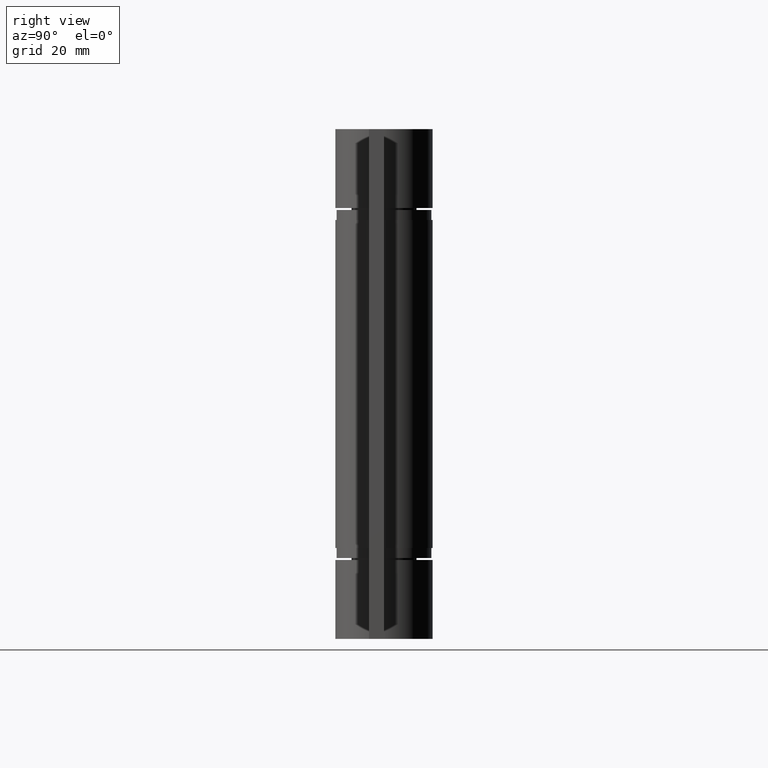
[diagram: clean part render]
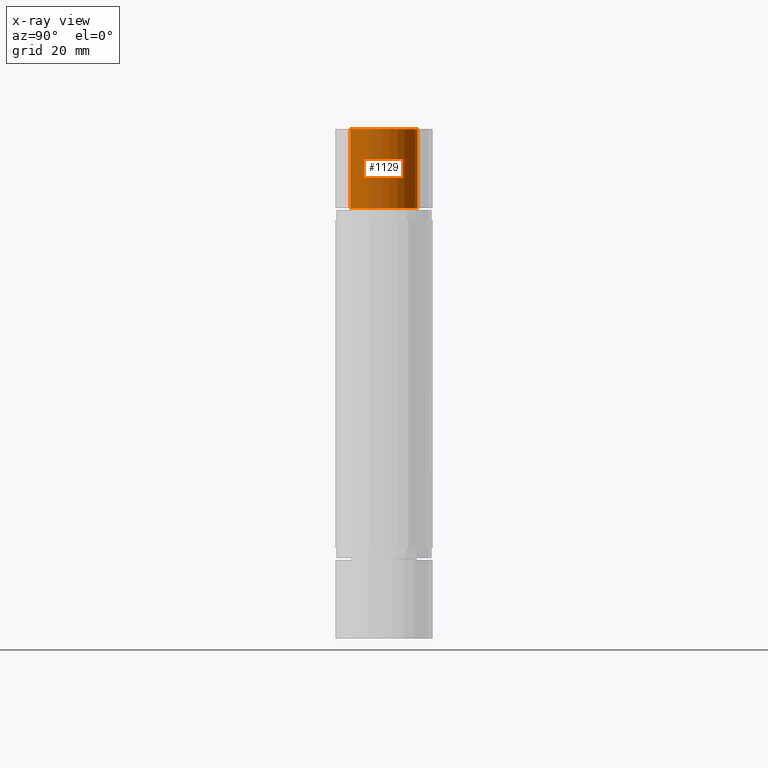
[diagram: x-ray — body ghosted, one internal face saturated and labeled with its STEP entity id]
A machine part, right view, then the same camera in x-ray: the body is ghosted and one INTERNAL B-rep face — a face not visible from any outside direction — is saturated and labeled: STEP entity #1129.
In plain terms, the highlighted cylindrical surface (edge-blend (fillet) strip) has radius 6.7 mm, axis along (0, -0, -1).
Its self-contained STEP definition (entity closure, byte-faithful):
#131=CYLINDRICAL_SURFACE('',#1241,6.7);
#166=CIRCLE('',#1217,6.7);
#182=CIRCLE('',#1242,6.7);
#239=FACE_OUTER_BOUND('',#327,.T.);
#327=EDGE_LOOP('',(#934,#935,#936,#937));
#433=LINE('',#1859,#510);
#436=LINE('',#1871,#513);
#510=VECTOR('',#1494,15.7);
#513=VECTOR('',#1509,15.7);
#581=VERTEX_POINT('',#1799);
#582=VERTEX_POINT('',#1801);
#604=VERTEX_POINT('',#1857);
#607=VERTEX_POINT('',#1869);
#698=EDGE_CURVE('',#582,#581,#166,.T.);
#727=EDGE_CURVE('',#604,#581,#433,.T.);
#732=EDGE_CURVE('',#607,#604,#182,.T.);
#733=EDGE_CURVE('',#607,#582,#436,.T.);
#934=ORIENTED_EDGE('',*,*,#698,.T.);
#935=ORIENTED_EDGE('',*,*,#727,.F.);
#936=ORIENTED_EDGE('',*,*,#732,.F.);
#937=ORIENTED_EDGE('',*,*,#733,.T.);
#1129=ADVANCED_FACE('',(#239),#131,.F.);
#1217=AXIS2_PLACEMENT_3D('',#1802,#1439,#1440);
#1241=AXIS2_PLACEMENT_3D('',#1868,#1505,#1506);
#1242=AXIS2_PLACEMENT_3D('',#1870,#1507,#1508);
#1439=DIRECTION('center_axis',(0.,0.,1.));
#1440=DIRECTION('ref_axis',(-0.999390827019096,-0.0348994967025013,0.));
#1494=DIRECTION('',(0.,0.,1.));
#1505=DIRECTION('center_axis',(0.,0.,1.));
#1506=DIRECTION('ref_axis',(-0.999390827019096,-0.0348994967025013,0.));
#1507=DIRECTION('center_axis',(0.,0.,1.));
#1508=DIRECTION('ref_axis',(-0.999390827019096,-0.0348994967025013,0.));
#1509=DIRECTION('',(0.,0.,1.));
#1799=CARTESIAN_POINT('',(6.21422671601628,-2.50467289719626,-35.05));
#1801=CARTESIAN_POINT('',(6.69591854102794,0.233826627906758,-35.05));
#1802=CARTESIAN_POINT('Origin',(0.,0.,-35.05));
#1857=CARTESIAN_POINT('',(6.21422671601628,-2.50467289719626,-50.75));
#1859=CARTESIAN_POINT('',(6.21422671601628,-2.50467289719626,0.));
#1868=CARTESIAN_POINT('Origin',(0.,0.,0.));
#1869=CARTESIAN_POINT('',(6.69591854102794,0.233826627906758,-50.75));
#1870=CARTESIAN_POINT('Origin',(0.,0.,-50.75));
#1871=CARTESIAN_POINT('',(6.69591854102794,0.233826627906758,0.));